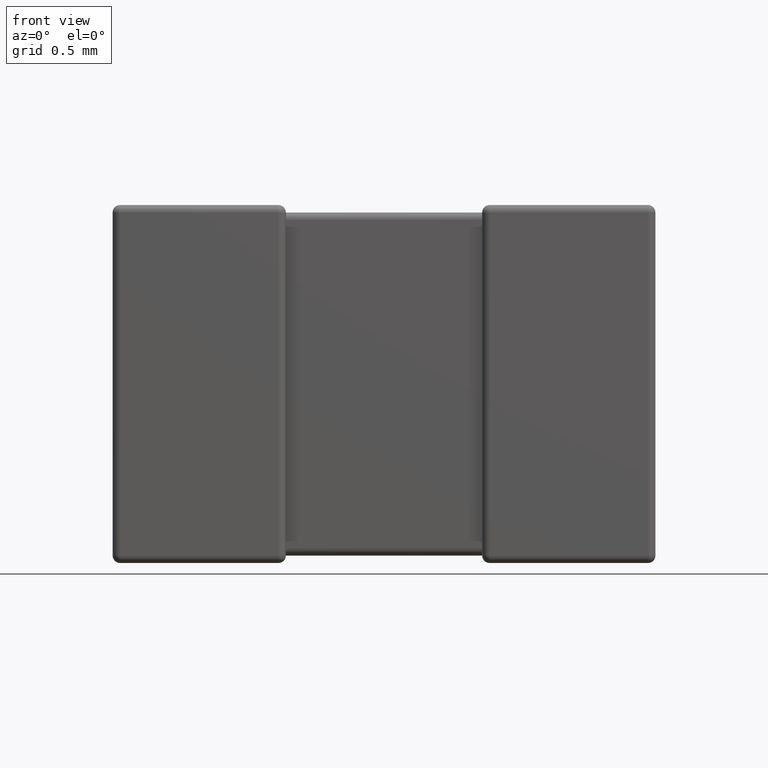
[diagram: clean part render]
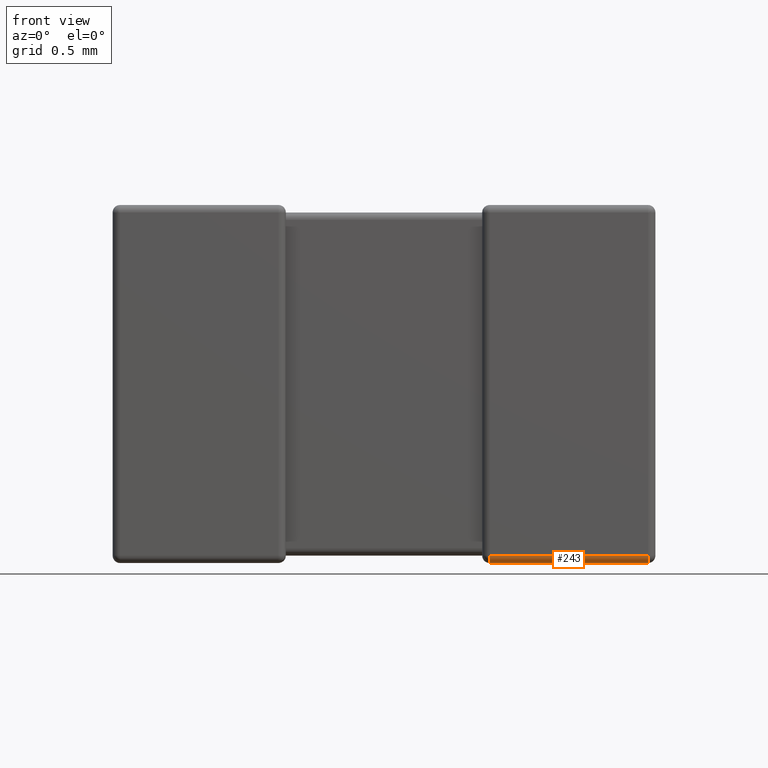
[diagram: same view with one face highlighted and labeled with its STEP entity id]
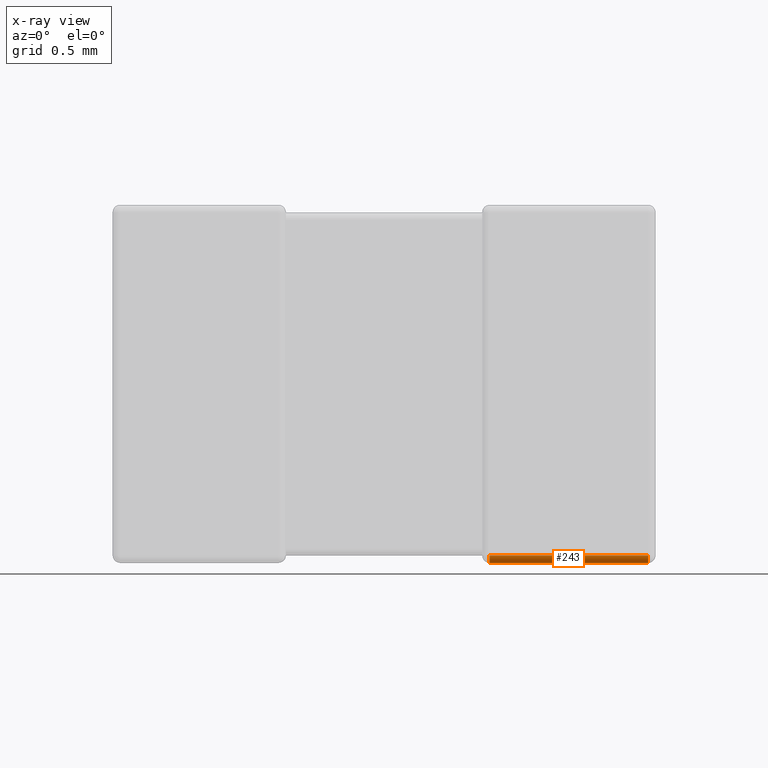
[diagram: x-ray of the same camera — body ghosted, the highlighted face saturated]
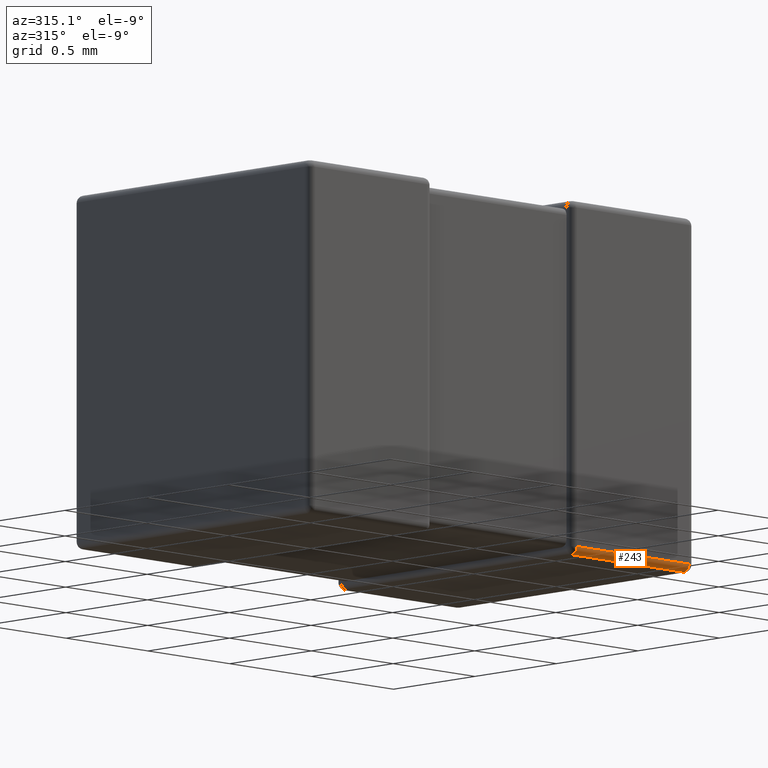
[diagram: same view with one face highlighted and labeled with its STEP entity id]
A machine part, front view. The second image highlights one B-rep face of the part: STEP entity #243.
The next image is the same camera in x-ray: the body ghosted, the highlighted face saturated — about 0% of this face is hidden behind the body in this view.
A second angle (auxiliary view) of the same face is appended — the face is thin or edge-on in the first view.
In plain terms, the highlighted cylindrical surface (edge-blend (fillet) strip) has radius 0.0322 mm, axis along (-1, -0, 0).
Its self-contained STEP definition (entity closure, byte-faithful):
#4 = ORIENTED_EDGE ( 'NONE', *, *, #2496, .F. ) ;
#63 = AXIS2_PLACEMENT_3D ( 'NONE', #2275, #3724, #1917 ) ;
#119 = EDGE_LOOP ( 'NONE', ( #4337, #4, #355, #4595 ) ) ;
#143 = DIRECTION ( 'NONE',  ( -1.000000000000000000, -0.000000000000000000, -0.000000000000000000 ) ) ;
#243 = ADVANCED_FACE ( 'NONE', ( #3559 ), #3949, .T. ) ;
#289 = VECTOR ( 'NONE', #2534, 1000.000000000000000 ) ;
#355 = ORIENTED_EDGE ( 'NONE', *, *, #4537, .F. ) ;
#380 = CARTESIAN_POINT ( 'NONE',  ( 1.632240000000000135, 0.03223999999999999089, -1.517759999999999998 ) ) ;
#471 = CARTESIAN_POINT ( 'NONE',  ( 2.350000000000000089, 0.03223999999999999089, -1.550000000000000044 ) ) ;
#819 = DIRECTION ( 'NONE',  ( 0.000000000000000000, 0.000000000000000000, 1.000000000000000000 ) ) ;
#1200 = CIRCLE ( 'NONE', #63, 0.03224000000000000477 ) ;
#1301 = VERTEX_POINT ( 'NONE', #1515 ) ;
#1473 = DIRECTION ( 'NONE',  ( -1.000000000000000000, -0.000000000000000000, 0.000000000000000000 ) ) ;
#1515 = CARTESIAN_POINT ( 'NONE',  ( 1.632240000000000135, 0.03223999999999999089, -1.550000000000000044 ) ) ;
#1526 = LINE ( 'NONE', #471, #289 ) ;
#1736 = LINE ( 'NONE', #4178, #3593 ) ;
#1743 = VERTEX_POINT ( 'NONE', #3671 ) ;
#1917 = DIRECTION ( 'NONE',  ( 0.000000000000000000, 0.000000000000000000, -1.000000000000000000 ) ) ;
#2275 = CARTESIAN_POINT ( 'NONE',  ( 2.317760000000000264, 0.03223999999999999783, -1.517759999999999998 ) ) ;
#2292 = AXIS2_PLACEMENT_3D ( 'NONE', #3726, #1473, #819 ) ;
#2496 = EDGE_CURVE ( 'NONE', #4652, #4020, #1736, .T. ) ;
#2534 = DIRECTION ( 'NONE',  ( -1.000000000000000000, -0.000000000000000000, 0.000000000000000000 ) ) ;
#3054 = DIRECTION ( 'NONE',  ( 0.000000000000000000, 0.000000000000000000, 1.000000000000000000 ) ) ;
#3216 = CARTESIAN_POINT ( 'NONE',  ( 1.632240000000000135, 0.000000000000000000, -1.517759999999999998 ) ) ;
#3266 = CARTESIAN_POINT ( 'NONE',  ( 2.317760000000000264, 0.000000000000000000, -1.517759999999999998 ) ) ;
#3559 = FACE_OUTER_BOUND ( 'NONE', #119, .T. ) ;
#3593 = VECTOR ( 'NONE', #4540, 1000.000000000000000 ) ;
#3671 = CARTESIAN_POINT ( 'NONE',  ( 2.317760000000000264, 0.03223999999999999089, -1.550000000000000044 ) ) ;
#3724 = DIRECTION ( 'NONE',  ( -1.000000000000000000, -0.000000000000000000, -0.000000000000000000 ) ) ;
#3726 = CARTESIAN_POINT ( 'NONE',  ( 2.350000000000000089, 0.03223999999999999089, -1.517759999999999998 ) ) ;
#3926 = AXIS2_PLACEMENT_3D ( 'NONE', #380, #143, #3054 ) ;
#3949 = CYLINDRICAL_SURFACE ( 'NONE', #2292, 0.03224000000000000477 ) ;
#4020 = VERTEX_POINT ( 'NONE', #3266 ) ;
#4077 = CIRCLE ( 'NONE', #3926, 0.03224000000000000477 ) ;
#4178 = CARTESIAN_POINT ( 'NONE',  ( 2.350000000000000089, 0.000000000000000000, -1.517759999999999998 ) ) ;
#4337 = ORIENTED_EDGE ( 'NONE', *, *, #4370, .T. ) ;
#4370 = EDGE_CURVE ( 'NONE', #1743, #4020, #1200, .T. ) ;
#4481 = EDGE_CURVE ( 'NONE', #1743, #1301, #1526, .T. ) ;
#4537 = EDGE_CURVE ( 'NONE', #1301, #4652, #4077, .T. ) ;
#4540 = DIRECTION ( 'NONE',  ( 1.000000000000000000, 0.000000000000000000, -0.000000000000000000 ) ) ;
#4595 = ORIENTED_EDGE ( 'NONE', *, *, #4481, .F. ) ;
#4652 = VERTEX_POINT ( 'NONE', #3216 ) ;